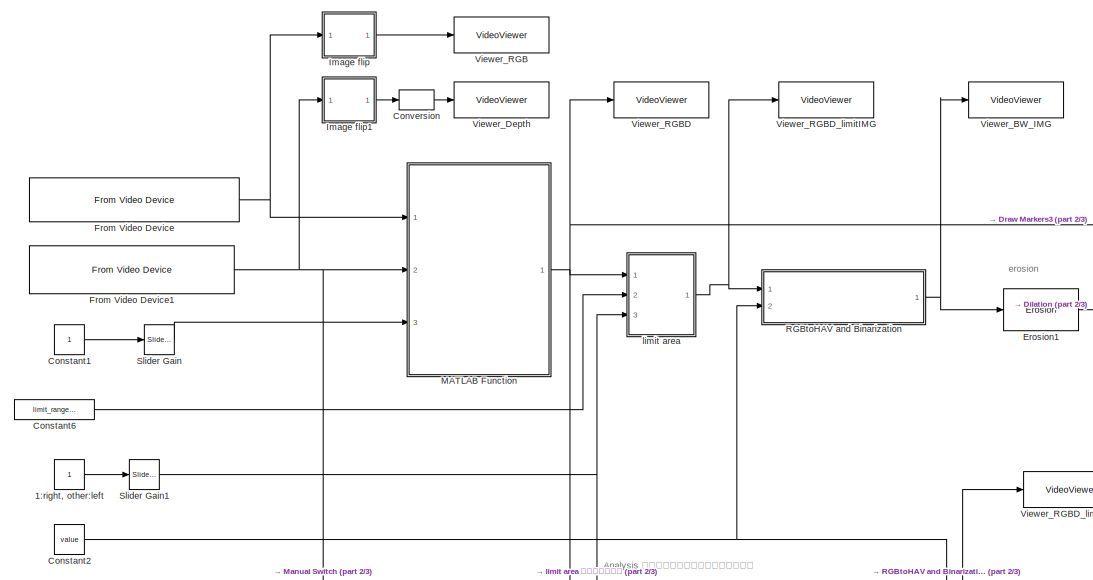
[diagram: root canvas - part 1/3, top center region]
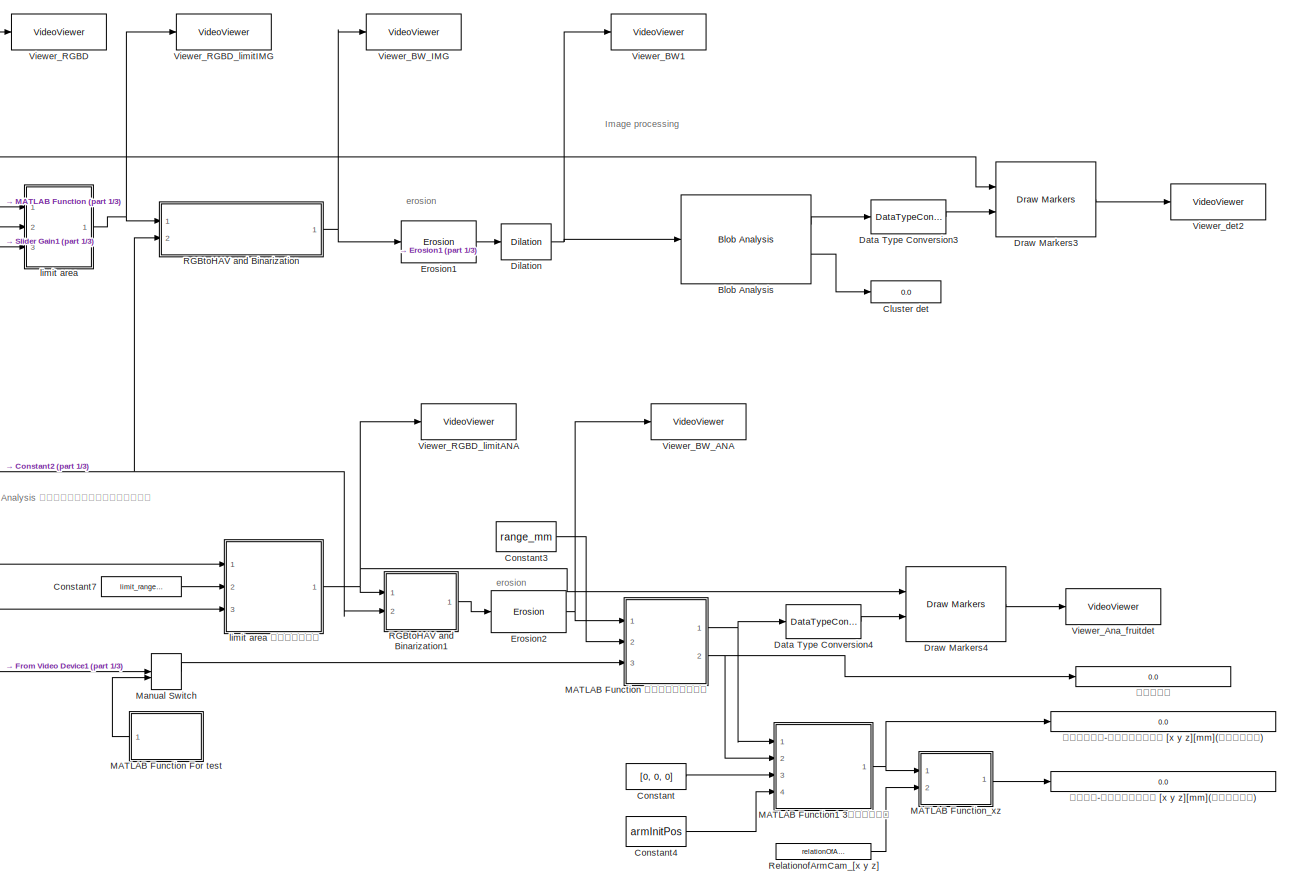
[diagram: root canvas - part 2/3, right side, full height]
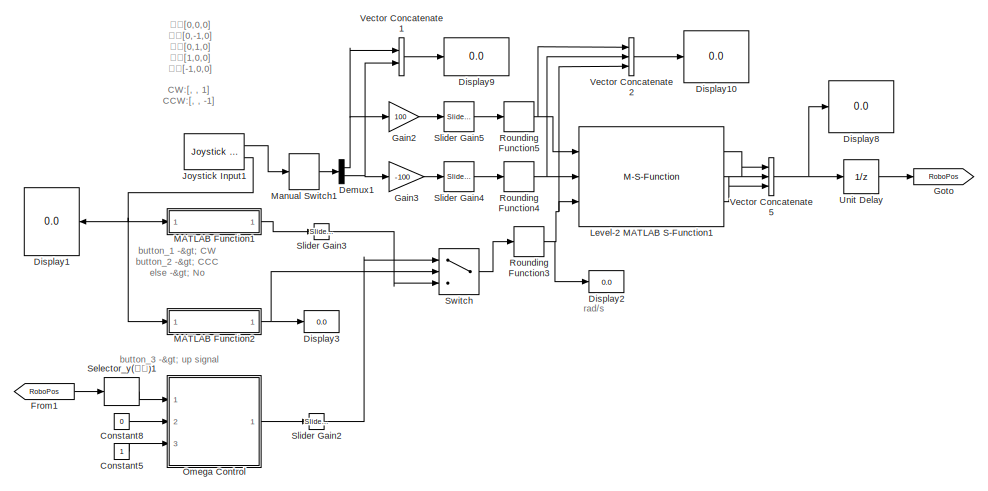
[diagram: root canvas - part 3/3, middle left region]
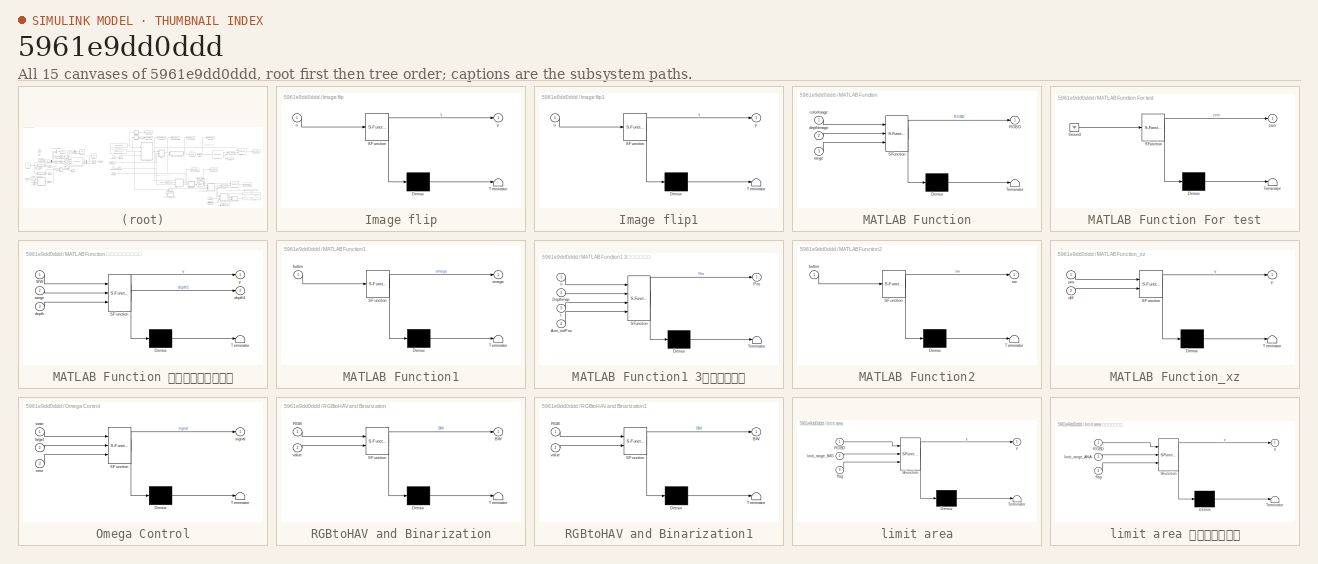
[diagram: thumbnail index - all 15 canvases of the model, root first then tree order]
MODEL slx_5961e9dd0ddd
KIND model
CONFIG AbsTol = auto
CONFIG EnableMultiTasking = off
CONFIG FixedStep = auto
CONFIG MaxStep = auto
CONFIG MinStep = auto
CONFIG RelTol = 1e-3
CONFIG SampleTimeConstraint = Unconstrained
CONFIG Solver = VariableStepAuto
CONFIG SolverName = VariableStepAuto
CONFIG StartTime = 0.0
CONFIG StopTime = inf
BLOCK [Constant] 1:right, other:left
BLOCK [Reference] Blob Analysis  REF=visionstatistics/Blob Analysis
  Ports = [1, 2]
  SourceBlock = visionstatistics/Blob Analysis
  SourceProductBaseCode = VP
  SourceProductName = Computer Vision System Toolbox
  SourceType = Blob Analysis
  Tag = vipblks_row_conv
BLOCK [Display] Cluster det
  Decimation = 1
  Ports = [1]
BLOCK [Constant] Constant
  Value = [0, 0, 0]
BLOCK [Constant] Constant1
BLOCK [Constant] Constant2
  Value = value
BLOCK [Constant] Constant3
  Value = range_mm
BLOCK [Constant] Constant4
  Value = armInitPos
BLOCK [Constant] Constant5
BLOCK [Constant] Constant6
  Value = limit_range_IMG
BLOCK [Constant] Constant7
  Value = limit_range_ANA
BLOCK [Constant] Constant8
  Value = 0
BLOCK [DataTypeConversion] Conversion
  OutDataTypeStr = uint8
  RndMeth = Floor
  SaturateOnIntegerOverflow = off
BLOCK [DataTypeConversion] Data Type Conversion3
  RndMeth = Floor
  SaturateOnIntegerOverflow = off
BLOCK [DataTypeConversion] Data Type Conversion4
  RndMeth = Floor
  SaturateOnIntegerOverflow = off
BLOCK [Demux] Demux1
  DisplayOption = bar
  Outputs = 2
  Ports = [1, 2]
BLOCK [Reference] Dilation  REF=visionmorphops/Dilation
  Commented = through
  Ports = [1, 1]
  SourceBlock = visionmorphops/Dilation
  SourceProductBaseCode = VP
  SourceProductName = Computer Vision System Toolbox
  SourceType = Dilation
BLOCK [Display] Display1
  Decimation = 1
  Ports = [1]
BLOCK [Display] Display10
  Decimation = 1
  Ports = [1]
BLOCK [Display] Display2
  Decimation = 1
  Ports = [1]
BLOCK [Display] Display3
  Decimation = 1
  Ports = [1]
BLOCK [Display] Display8
  Decimation = 1
  Ports = [1]
BLOCK [Display] Display9
  Decimation = 1
  Ports = [1]
BLOCK [Reference] Draw Markers3  REF=visiontextngfix/Draw Markers
  Ports = [2, 1]
  SourceBlock = visiontextngfix/Draw Markers
  SourceProductBaseCode = VP
  SourceProductName = Computer Vision System Toolbox
  SourceType = Draw Markers
BLOCK [Reference] Draw Markers4  REF=visiontextngfix/Draw Markers
  Ports = [2, 1]
  SourceBlock = visiontextngfix/Draw Markers
  SourceProductBaseCode = VP
  SourceProductName = Computer Vision System Toolbox
  SourceType = Draw Markers
BLOCK [Reference] Erosion1  REF=visionmorphops/Erosion
  Ports = [1, 1]
  SourceBlock = visionmorphops/Erosion
  SourceProductBaseCode = VP
  SourceProductName = Computer Vision System Toolbox
  SourceType = Erosion
BLOCK [Reference] Erosion2  REF=visionmorphops/Erosion
  Ports = [1, 1]
  SourceBlock = visionmorphops/Erosion
  SourceProductBaseCode = VP
  SourceProductName = Computer Vision System Toolbox
  SourceType = Erosion
BLOCK [Reference] From Video Device  REF=imaqlib/From Video Device
  Ports = [0, 1]
  SourceBlock = imaqlib/From Video Device
  SourceProductBaseCode = IA
  SourceProductName = Image Acquisition Toolbox
  SourceType = From Video Device
  UserDataPersistent = on
BLOCK [Reference] From Video Device1  REF=imaqlib/From Video Device
  Ports = [0, 1]
  SourceBlock = imaqlib/From Video Device
  SourceProductBaseCode = IA
  SourceProductName = Image Acquisition Toolbox
  SourceType = From Video Device
  UserDataPersistent = on
BLOCK [From] From1
  GotoTag = RoboPos
BLOCK [Gain] Gain2
  Gain = 100
  OutDataTypeStr = Inherit: Inherit via internal rule
  ParamDataTypeStr = Inherit: Inherit via internal rule
  SaturateOnIntegerOverflow = off
BLOCK [Gain] Gain3
  Gain = -100
  OutDataTypeStr = Inherit: Inherit via internal rule
  ParamDataTypeStr = Inherit: Inherit via internal rule
  SaturateOnIntegerOverflow = off
BLOCK [Goto] Goto
  GotoTag = RoboPos
BLOCK [SubSystem] Image flip
  ErrorFcn = Stateflow.Translate.translate
  PermitHierarchicalResolution = ExplicitOnly
  Ports = [1, 1]
  RequestExecContextInheritance = off
  SFBlockType = MATLAB Function
  TreatAsAtomicUnit = on
  Variant = off
BLOCK [Demux] Image flip/ Demux 
  Outputs = 1
  Ports = [1, 1]
BLOCK [S-Function] Image flip/ SFunction 
  EnableBusSupport = on
  FunctionName = sf_sfun
  PortCounts = [1 2]
  Ports = [1, 2]
  SFcnIsStateOwnerBlock = off
  SFunctionDeploymentMode = off
  Tag = Stateflow S-Function test_kinectExia 4
BLOCK [Terminator] Image flip/ Terminator 
BLOCK [Inport] Image flip/u
  IconDisplay = Port number
BLOCK [Outport] Image flip/y
  IconDisplay = Port number
BLOCK [SubSystem] Image flip1
  ErrorFcn = Stateflow.Translate.translate
  PermitHierarchicalResolution = ExplicitOnly
  Ports = [1, 1]
  RequestExecContextInheritance = off
  SFBlockType = MATLAB Function
  TreatAsAtomicUnit = on
  Variant = off
BLOCK [Demux] Image flip1/ Demux 
  Outputs = 1
  Ports = [1, 1]
BLOCK [S-Function] Image flip1/ SFunction 
  EnableBusSupport = on
  FunctionName = sf_sfun
  PortCounts = [1 2]
  Ports = [1, 2]
  SFcnIsStateOwnerBlock = off
  SFunctionDeploymentMode = off
  Tag = Stateflow S-Function test_kinectExia 3
BLOCK [Terminator] Image flip1/ Terminator 
BLOCK [Inport] Image flip1/u
  IconDisplay = Port number
BLOCK [Outport] Image flip1/y
  IconDisplay = Port number
BLOCK [Reference] Joystick Input1  REF=vrlib/Joystick Input
  Ports = [0, 2]
  SourceBlock = vrlib/Joystick Input
  SourceProductBaseCode = VR
  SourceProductName = Simulink 3D Animation
  SourceType = Joystick Input
BLOCK [M-S-Function] Level-2 MATLAB S-Function1
  FunctionName = ExiaSerialPrint2017
  Parameters = 'COM13'
  Ports = [3, 3]
BLOCK [SubSystem] MATLAB Function
  ErrorFcn = Stateflow.Translate.translate
  PermitHierarchicalResolution = ExplicitOnly
  Ports = [3, 1]
  RequestExecContextInheritance = off
  SFBlockType = MATLAB Function
  TreatAsAtomicUnit = on
  Variant = off
BLOCK [SubSystem] MATLAB Function For test
  ErrorFcn = Stateflow.Translate.translate
  PermitHierarchicalResolution = ExplicitOnly
  Ports = [0, 1]
  RequestExecContextInheritance = off
  SFBlockType = MATLAB Function
  TreatAsAtomicUnit = on
  Variant = off
BLOCK [Demux] MATLAB Function For test/ Demux 
  Outputs = 1
  Ports = [1, 1]
BLOCK [Ground] MATLAB Function For test/ Ground 
BLOCK [S-Function] MATLAB Function For test/ SFunction 
  EnableBusSupport = on
  FunctionName = sf_sfun
  PortCounts = [1 2]
  Ports = [1, 2]
  SFcnIsStateOwnerBlock = off
  SFunctionDeploymentMode = off
  Tag = Stateflow S-Function test_kinectExia 1
BLOCK [Terminator] MATLAB Function For test/ Terminator 
BLOCK [Outport] MATLAB Function For test/zero
  IconDisplay = Port number
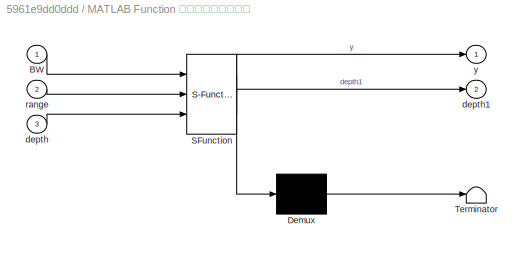
BLOCK [SubSystem] MATLAB Function 収穫対象果実の検出
  ErrorFcn = Stateflow.Translate.translate
  PermitHierarchicalResolution = ExplicitOnly
  Ports = [3, 2]
  RequestExecContextInheritance = off
  SFBlockType = MATLAB Function
  TreatAsAtomicUnit = on
  Variant = off
BLOCK [Demux] MATLAB Function 収穫対象果実の検出/ Demux 
  Outputs = 1
  Ports = [1, 1]
BLOCK [S-Function] MATLAB Function 収穫対象果実の検出/ SFunction 
  EnableBusSupport = on
  FunctionName = sf_sfun
  PortCounts = [3 3]
  Ports = [3, 3]
  SFcnIsStateOwnerBlock = off
  SFunctionDeploymentMode = off
  Tag = Stateflow S-Function test_kinectExia 5
BLOCK [Terminator] MATLAB Function 収穫対象果実の検出/ Terminator 
BLOCK [Inport] MATLAB Function 収穫対象果実の検出/BW
  IconDisplay = Port number
BLOCK [Inport] MATLAB Function 収穫対象果実の検出/depth
  IconDisplay = Port number
  Port = 3
BLOCK [Outport] MATLAB Function 収穫対象果実の検出/depth1
  IconDisplay = Port number
  Port = 2
BLOCK [Inport] MATLAB Function 収穫対象果実の検出/range
  IconDisplay = Port number
  Port = 2
BLOCK [Outport] MATLAB Function 収穫対象果実の検出/y
  IconDisplay = Port number
BLOCK [Demux] MATLAB Function/ Demux 
  Outputs = 1
  Ports = [1, 1]
BLOCK [S-Function] MATLAB Function/ SFunction 
  EnableBusSupport = on
  FunctionName = sf_sfun
  PortCounts = [3 2]
  Ports = [3, 2]
  SFcnIsStateOwnerBlock = off
  SFunctionDeploymentMode = off
  Tag = Stateflow S-Function test_kinectExia 11
BLOCK [Terminator] MATLAB Function/ Terminator 
BLOCK [Outport] MATLAB Function/RGBD
  IconDisplay = Port number
BLOCK [Inport] MATLAB Function/colorImage
  IconDisplay = Port number
BLOCK [Inport] MATLAB Function/depthImage
  IconDisplay = Port number
  Port = 2
BLOCK [Inport] MATLAB Function/range
  IconDisplay = Port number
  Port = 3
BLOCK [SubSystem] MATLAB Function1
  ErrorFcn = Stateflow.Translate.translate
  PermitHierarchicalResolution = ExplicitOnly
  Ports = [1, 1]
  RequestExecContextInheritance = off
  SFBlockType = MATLAB Function
  TreatAsAtomicUnit = on
  Variant = off
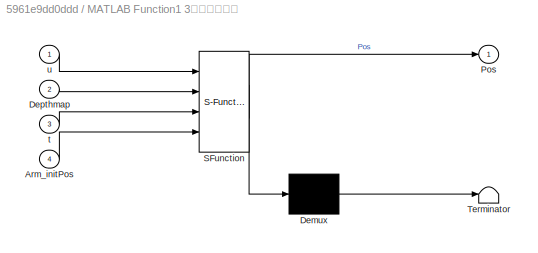
BLOCK [SubSystem] MATLAB Function1 3次元位置検出
  ErrorFcn = Stateflow.Translate.translate
  PermitHierarchicalResolution = ExplicitOnly
  Ports = [4, 1]
  RequestExecContextInheritance = off
  SFBlockType = MATLAB Function
  TreatAsAtomicUnit = on
  Variant = off
BLOCK [Demux] MATLAB Function1 3次元位置検出/ Demux 
  Outputs = 1
  Ports = [1, 1]
BLOCK [S-Function] MATLAB Function1 3次元位置検出/ SFunction 
  EnableBusSupport = on
  FunctionName = sf_sfun
  PortCounts = [4 2]
  Ports = [4, 2]
  SFcnIsStateOwnerBlock = off
  SFunctionDeploymentMode = off
  Tag = Stateflow S-Function test_kinectExia 9
BLOCK [Terminator] MATLAB Function1 3次元位置検出/ Terminator 
BLOCK [Inport] MATLAB Function1 3次元位置検出/Arm_initPos
  IconDisplay = Port number
  Port = 4
BLOCK [Inport] MATLAB Function1 3次元位置検出/Depthmap
  IconDisplay = Port number
  Port = 2
BLOCK [Outport] MATLAB Function1 3次元位置検出/Pos
  IconDisplay = Port number
BLOCK [Inport] MATLAB Function1 3次元位置検出/t
  IconDisplay = Port number
  Port = 3
BLOCK [Inport] MATLAB Function1 3次元位置検出/u
  IconDisplay = Port number
BLOCK [Demux] MATLAB Function1/ Demux 
  Outputs = 1
  Ports = [1, 1]
BLOCK [S-Function] MATLAB Function1/ SFunction 
  EnableBusSupport = on
  FunctionName = sf_sfun
  PortCounts = [1 2]
  Ports = [1, 2]
  SFcnIsStateOwnerBlock = off
  SFunctionDeploymentMode = off
  Tag = Stateflow S-Function test_kinectExia 8
BLOCK [Terminator] MATLAB Function1/ Terminator 
BLOCK [Inport] MATLAB Function1/button
  IconDisplay = Port number
BLOCK [Outport] MATLAB Function1/omega
  IconDisplay = Port number
BLOCK [SubSystem] MATLAB Function2
  ErrorFcn = Stateflow.Translate.translate
  PermitHierarchicalResolution = ExplicitOnly
  Ports = [1, 1]
  RequestExecContextInheritance = off
  SFBlockType = MATLAB Function
  TreatAsAtomicUnit = on
  Variant = off
BLOCK [Demux] MATLAB Function2/ Demux 
  Outputs = 1
  Ports = [1, 1]
BLOCK [S-Function] MATLAB Function2/ SFunction 
  EnableBusSupport = on
  FunctionName = sf_sfun
  PortCounts = [1 2]
  Ports = [1, 2]
  SFcnIsStateOwnerBlock = off
  SFunctionDeploymentMode = off
  Tag = Stateflow S-Function test_kinectExia 10
BLOCK [Terminator] MATLAB Function2/ Terminator 
BLOCK [Inport] MATLAB Function2/button
  IconDisplay = Port number
BLOCK [Outport] MATLAB Function2/sw
  IconDisplay = Port number
BLOCK [SubSystem] MATLAB Function_xz
  ErrorFcn = Stateflow.Translate.translate
  PermitHierarchicalResolution = ExplicitOnly
  Ports = [2, 1]
  RequestExecContextInheritance = off
  SFBlockType = MATLAB Function
  TreatAsAtomicUnit = on
  Variant = off
BLOCK [Demux] MATLAB Function_xz/ Demux 
  Outputs = 1
  Ports = [1, 1]
BLOCK [S-Function] MATLAB Function_xz/ SFunction 
  EnableBusSupport = on
  FunctionName = sf_sfun
  PortCounts = [2 2]
  Ports = [2, 2]
  SFcnIsStateOwnerBlock = off
  SFunctionDeploymentMode = off
  Tag = Stateflow S-Function test_kinectExia 7
BLOCK [Terminator] MATLAB Function_xz/ Terminator 
BLOCK [Inport] MATLAB Function_xz/diff
  IconDisplay = Port number
  Port = 2
BLOCK [Inport] MATLAB Function_xz/pos
  IconDisplay = Port number
BLOCK [Outport] MATLAB Function_xz/y
  IconDisplay = Port number
BLOCK [ManualSwitch] Manual Switch
BLOCK [ManualSwitch] Manual Switch1
BLOCK [SubSystem] Omega Control
  ErrorFcn = Stateflow.Translate.translate
  PermitHierarchicalResolution = ExplicitOnly
  Ports = [3, 1]
  RequestExecContextInheritance = off
  SFBlockType = MATLAB Function
  TreatAsAtomicUnit = on
  Variant = off
BLOCK [Demux] Omega Control/ Demux 
  Outputs = 1
  Ports = [1, 1]
BLOCK [S-Function] Omega Control/ SFunction 
  EnableBusSupport = on
  FunctionName = sf_sfun
  PortCounts = [3 2]
  Ports = [3, 2]
  SFcnIsStateOwnerBlock = off
  SFunctionDeploymentMode = off
  Tag = Stateflow S-Function test_kinectExia 12
BLOCK [Terminator] Omega Control/ Terminator 
BLOCK [Inport] Omega Control/error
  IconDisplay = Port number
  Port = 3
BLOCK [Outport] Omega Control/signal
  IconDisplay = Port number
BLOCK [Inport] Omega Control/state
  IconDisplay = Port number
BLOCK [Inport] Omega Control/target
  IconDisplay = Port number
  Port = 2
BLOCK [SubSystem] RGBtoHAV and Binarization
  ErrorFcn = Stateflow.Translate.translate
  PermitHierarchicalResolution = ExplicitOnly
  Ports = [2, 1]
  RequestExecContextInheritance = off
  SFBlockType = MATLAB Function
  TreatAsAtomicUnit = on
  Variant = off
BLOCK [Demux] RGBtoHAV and Binarization/ Demux 
  Outputs = 1
  Ports = [1, 1]
BLOCK [S-Function] RGBtoHAV and Binarization/ SFunction 
  EnableBusSupport = on
  FunctionName = sf_sfun
  PortCounts = [2 2]
  Ports = [2, 2]
  SFcnIsStateOwnerBlock = off
  SFunctionDeploymentMode = off
  Tag = Stateflow S-Function test_kinectExia 2
BLOCK [Terminator] RGBtoHAV and Binarization/ Terminator 
BLOCK [Outport] RGBtoHAV and Binarization/BW
  IconDisplay = Port number
BLOCK [Inport] RGBtoHAV and Binarization/RGB
  IconDisplay = Port number
BLOCK [Inport] RGBtoHAV and Binarization/value
  IconDisplay = Port number
  Port = 2
BLOCK [SubSystem] RGBtoHAV and Binarization1
  ErrorFcn = Stateflow.Translate.translate
  PermitHierarchicalResolution = ExplicitOnly
  Ports = [2, 1]
  RequestExecContextInheritance = off
  SFBlockType = MATLAB Function
  TreatAsAtomicUnit = on
  Variant = off
BLOCK [Demux] RGBtoHAV and Binarization1/ Demux 
  Outputs = 1
  Ports = [1, 1]
BLOCK [S-Function] RGBtoHAV and Binarization1/ SFunction 
  EnableBusSupport = on
  FunctionName = sf_sfun
  PortCounts = [2 2]
  Ports = [2, 2]
  SFcnIsStateOwnerBlock = off
  SFunctionDeploymentMode = off
  Tag = Stateflow S-Function test_kinectExia 6
BLOCK [Terminator] RGBtoHAV and Binarization1/ Terminator 
BLOCK [Outport] RGBtoHAV and Binarization1/BW
  IconDisplay = Port number
BLOCK [Inport] RGBtoHAV and Binarization1/RGB
  IconDisplay = Port number
BLOCK [Inport] RGBtoHAV and Binarization1/value
  IconDisplay = Port number
  Port = 2
BLOCK [Constant] RelationofArmCam_[x y z]
  Value = relationOfArmCam
BLOCK [Rounding] Rounding Function3
BLOCK [Rounding] Rounding Function4
BLOCK [Rounding] Rounding Function5
BLOCK [Selector] Selector_y(左右)1
  IndexOptions = Index vector (dialog)
  Indices = 3
  InputPortWidth = 3
  OutputSizes = 1
  Ports = [1, 1]
BLOCK [Reference] Slider Gain  REF=simulink/Math
Operations/Slider
Gain
  Ports = [1, 1]
  SourceBlock = simulink/Math\nOperations/Slider\nGain
  SourceProductBaseCode = SL
  SourceProductName = Simulink
  SourceType = Slider Gain
BLOCK [Reference] Slider Gain1  REF=simulink/Math
Operations/Slider
Gain
  Ports = [1, 1]
  SourceBlock = simulink/Math\nOperations/Slider\nGain
  SourceProductBaseCode = SL
  SourceProductName = Simulink
  SourceType = Slider Gain
BLOCK [Reference] Slider Gain2  REF=simulink/Math
Operations/Slider
Gain
  Ports = [1, 1]
  SourceBlock = simulink/Math\nOperations/Slider\nGain
  SourceProductBaseCode = SL
  SourceProductName = Simulink
  SourceType = Slider Gain
BLOCK [Reference] Slider Gain3  REF=simulink/Math
Operations/Slider
Gain
  Ports = [1, 1]
  SourceBlock = simulink/Math\nOperations/Slider\nGain
  SourceProductBaseCode = SL
  SourceProductName = Simulink
  SourceType = Slider Gain
BLOCK [Reference] Slider Gain4  REF=simulink/Math
Operations/Slider
Gain
  Ports = [1, 1]
  SourceBlock = simulink/Math\nOperations/Slider\nGain
  SourceProductBaseCode = SL
  SourceProductName = Simulink
  SourceType = Slider Gain
BLOCK [Reference] Slider Gain5  REF=simulink/Math
Operations/Slider
Gain
  Ports = [1, 1]
  SourceBlock = simulink/Math\nOperations/Slider\nGain
  SourceProductBaseCode = SL
  SourceProductName = Simulink
  SourceType = Slider Gain
BLOCK [Switch] Switch
  Criteria = u2 > Threshold
  InputSameDT = off
  SaturateOnIntegerOverflow = off
BLOCK [UnitDelay] Unit Delay
  InputProcessing = Elements as channels (sample based)
  SampleTime = -1
BLOCK [Concatenate] Vector Concatenate1
  Ports = [2, 1]
BLOCK [Concatenate] Vector Concatenate2
  NumInputs = 3
  Ports = [3, 1]
BLOCK [Concatenate] Vector Concatenate5
  NumInputs = 3
  Ports = [3, 1]
BLOCK [VideoViewer] Viewer_Ana_fruitdet
  FigPos = [1514 544 396 330]
  Ports = [1]
  ScopeSpecificationString = vipscopes.VideoViewerScopeCfg('CurrentConfiguration', extmgr.ConfigurationSet(extmgr.Configuration('Core','General UI',true),extmgr.Configuration('Core','Source UI',true),extmgr.Configuration('Sources','WiredSimulink',true),extmgr.Configuration('Visuals','Video',true),extmgr.Configuration('Tools','Image Navigation Tools',true,'Magnification',0.719339622641509),extmgr.Configuration('Tools','Image T...<+136ch>
  colormapValue = gray(256)
BLOCK [VideoViewer] Viewer_BW1
  Commented = on
  FigPos = [685 929 418 304]
  Ports = [1]
  ScopeSpecificationString = vipscopes.VideoViewerScopeCfg('CurrentConfiguration', extmgr.ConfigurationSet(extmgr.Configuration('Core','General UI',true),extmgr.Configuration('Core','Source UI',true),extmgr.Configuration('Sources','WiredSimulink',true),extmgr.Configuration('Visuals','Video',true),extmgr.Configuration('Tools','Image Navigation Tools',true,'Magnification',0.658018867924528),extmgr.Configuration('Tools','Image T...<+135ch>  <repeated x5 — deduplicated; at blocks: Viewer_BW1, Viewer_BW_IMG, Viewer_RGBD_limitANA, Viewer_RGBD_limitIMG, Viewer_det2>
  colormapValue = gray(256)
BLOCK [VideoViewer] Viewer_BW_ANA
  FigPos = [1379 1090 418 304]
  Ports = [1]
  ScopeSpecificationString = vipscopes.VideoViewerScopeCfg('CurrentConfiguration', extmgr.ConfigurationSet(extmgr.Configuration('Core','General UI',true),extmgr.Configuration('Core','Source UI',true),extmgr.Configuration('Sources','WiredSimulink',true),extmgr.Configuration('Visuals','Video',true),extmgr.Configuration('Tools','Image Navigation Tools',true,'Magnification',0.658018867924528),extmgr.Configuration('Tools','Image T...<+136ch>
  colormapValue = gray(256)
BLOCK [VideoViewer] Viewer_BW_IMG
  FigPos = [650 424 418 304]
  Ports = [1]
  colormapValue = gray(256)
BLOCK [VideoViewer] Viewer_Depth
  Commented = on
  FigPos = [326 827 418 304]
  Ports = [1]
  ScopeSpecificationString = vipscopes.VideoViewerScopeCfg('CurrentConfiguration', extmgr.ConfigurationSet(extmgr.Configuration('Core','General UI',true),extmgr.Configuration('Core','Source UI',true),extmgr.Configuration('Sources','WiredSimulink',true),extmgr.Configuration('Visuals','Video',true),extmgr.Configuration('Tools','Image Navigation Tools',true,'Magnification',0.658018867924528),extmgr.Configuration('Tools','Image T...<+109ch>
  colormapValue = gray(256)
BLOCK [VideoViewer] Viewer_RGB
  Commented = on
  FigPos = [119 580 418 301]
  Ports = [1]
  ScopeSpecificationString = vipscopes.VideoViewerScopeCfg('CurrentConfiguration', extmgr.ConfigurationSet(extmgr.Configuration('Core','General UI',true),extmgr.Configuration('Core','Source UI',true),extmgr.Configuration('Sources','WiredSimulink',true),extmgr.Configuration('Visuals','Video',true),extmgr.Configuration('Tools','Image Navigation Tools',true,'Magnification',0.217708333333333),extmgr.Configuration('Tools','Image T...<+109ch>
  colormapValue = gray(256)
BLOCK [VideoViewer] Viewer_RGBD
  FigPos = [1186 523 418 304]
  Ports = [1]
  ScopeSpecificationString = vipscopes.VideoViewerScopeCfg('CurrentConfiguration', extmgr.ConfigurationSet(extmgr.Configuration('Core','General UI',true),extmgr.Configuration('Core','Source UI',true),extmgr.Configuration('Sources','WiredSimulink',true),extmgr.Configuration('Visuals','Video',true),extmgr.Configuration('Tools','Image Navigation Tools',true,'Magnification',0.658018867924528),extmgr.Configuration('Tools','Image T...<+136ch>
  colormapValue = gray(256)
BLOCK [VideoViewer] Viewer_RGBD_limitANA
  FigPos = [729 882 418 304]
  Ports = [1]
  colormapValue = gray(256)
BLOCK [VideoViewer] Viewer_RGBD_limitIMG
  FigPos = [197 459 418 307]
  Ports = [1]
  colormapValue = gray(256)
BLOCK [VideoViewer] Viewer_det2
  FigPos = [938 457 418 304]
  Ports = [1]
  colormapValue = gray(256)
BLOCK [SubSystem] limit area
  ErrorFcn = Stateflow.Translate.translate
  PermitHierarchicalResolution = ExplicitOnly
  Ports = [3, 1]
  RequestExecContextInheritance = off
  SFBlockType = MATLAB Function
  TreatAsAtomicUnit = on
  Variant = off
BLOCK [SubSystem] limit area 着目領域の限定
  ErrorFcn = Stateflow.Translate.translate
  PermitHierarchicalResolution = ExplicitOnly
  Ports = [3, 1]
  RequestExecContextInheritance = off
  SFBlockType = MATLAB Function
  TreatAsAtomicUnit = on
  Variant = off
BLOCK [Demux] limit area 着目領域の限定/ Demux 
  Outputs = 1
  Ports = [1, 1]
BLOCK [S-Function] limit area 着目領域の限定/ SFunction 
  EnableBusSupport = on
  FunctionName = sf_sfun
  PortCounts = [3 2]
  Ports = [3, 2]
  SFcnIsStateOwnerBlock = off
  SFunctionDeploymentMode = off
  Tag = Stateflow S-Function test_kinectExia 13
BLOCK [Terminator] limit area 着目領域の限定/ Terminator 
BLOCK [Inport] limit area 着目領域の限定/RGBD
  IconDisplay = Port number
BLOCK [Inport] limit area 着目領域の限定/flag
  IconDisplay = Port number
  Port = 3
BLOCK [Inport] limit area 着目領域の限定/limit_range_ANA
  IconDisplay = Port number
  Port = 2
BLOCK [Outport] limit area 着目領域の限定/y
  IconDisplay = Port number
BLOCK [Demux] limit area/ Demux 
  Outputs = 1
  Ports = [1, 1]
BLOCK [S-Function] limit area/ SFunction 
  EnableBusSupport = on
  FunctionName = sf_sfun
  PortCounts = [3 2]
  Ports = [3, 2]
  SFcnIsStateOwnerBlock = off
  SFunctionDeploymentMode = off
  Tag = Stateflow S-Function test_kinectExia 25
BLOCK [Terminator] limit area/ Terminator 
BLOCK [Inport] limit area/RGBD
  IconDisplay = Port number
BLOCK [Inport] limit area/flag
  IconDisplay = Port number
  Port = 3
BLOCK [Inport] limit area/limit_range_IMG
  IconDisplay = Port number
  Port = 2
BLOCK [Outport] limit area/y
  IconDisplay = Port number
BLOCK [Display] カメラレンズ-トマト果実の距離 [x y z][mm](ロボット座標)
  Decimation = 1
  Ports = [1]
BLOCK [Display] 手先位置-トマト果実の距離 [x y z][mm](ロボット座標)
  Decimation = 1
  Ports = [1]
BLOCK [Display] 目標奥行き
  Decimation = 1
  Ports = [1]
ANNOTATION (root): erosion
ANNOTATION (root): button_1 -> CW button_2 -> CCC else -> No
ANNOTATION (root): button_3 -> up signal
ANNOTATION (root): rad/s
ANNOTATION (root): Analysis 検出領域内にトマトがある場合のみ
ANNOTATION (root): CW:[, , 1] CCW:[, , -1]
ANNOTATION (root): Image processing
ANNOTATION (root): 止：[0,0,0] 前：[0,-1,0] 後：[0,1,0] 右：[1,0,0] 左：[-1,0,0]
LINE 1:right, other:left:1 -> Slider Gain1:1
LINE Blob Analysis:1 -> Data Type Conversion3:1
LINE Blob Analysis:2 -> Cluster det:1
LINE Constant1:1 -> Slider Gain:1
NET Constant2:1 -> RGBtoHAV and Binarization1:2, RGBtoHAV and Binarization:2
LINE Constant3:1 -> MATLAB Function 収穫対象果実の検出:2
LINE Constant4:1 -> MATLAB Function1 3次元位置検出:4
LINE Constant5:1 -> Omega Control:3
LINE Constant6:1 -> limit area:2
LINE Constant7:1 -> limit area 着目領域の限定:2
LINE Constant8:1 -> Omega Control:2
LINE Constant:1 -> MATLAB Function1 3次元位置検出:3
LINE Conversion:1 -> Viewer_Depth:1
LINE Data Type Conversion3:1 -> Draw Markers3:2
LINE Data Type Conversion4:1 -> Draw Markers4:2
NET Demux1:1 -> Gain2:1, Vector Concatenate1:1
NET Demux1:2 -> Gain3:1, Vector Concatenate1:2
NET Dilation:1 -> Blob Analysis:1, Viewer_BW1:1
LINE Draw Markers3:1 -> Viewer_det2:1
LINE Draw Markers4:1 -> Viewer_Ana_fruitdet:1
LINE Erosion1:1 -> Dilation:1
NET Erosion2:1 -> MATLAB Function 収穫対象果実の検出:1, Viewer_BW_ANA:1
NET From Video Device1:1 -> Image flip1:1, MATLAB Function:2, Manual Switch:1
NET From Video Device:1 -> Image flip:1, MATLAB Function:1
LINE From1:1 -> Selector_y(左右)1:1
LINE Gain2:1 -> Slider Gain5:1
LINE Gain3:1 -> Slider Gain4:1
LINE Image flip1:1 -> Conversion:1
LINE Image flip:1 -> Viewer_RGB:1
LINE Joystick Input1:1 -> Manual Switch1:1
NET Joystick Input1:2 -> Display1:1, MATLAB Function1:1, MATLAB Function2:1
LINE Level-2 MATLAB S-Function1:1 -> Vector Concatenate5:1
LINE Level-2 MATLAB S-Function1:2 -> Vector Concatenate5:2
LINE Level-2 MATLAB S-Function1:3 -> Vector Concatenate5:3
LINE MATLAB Function For test:1 -> Manual Switch:2
NET MATLAB Function 収穫対象果実の検出:1 -> Data Type Conversion4:1, MATLAB Function1 3次元位置検出:1
NET MATLAB Function 収穫対象果実の検出:2 -> MATLAB Function1 3次元位置検出:2, 目標奥行き:1
NET MATLAB Function1 3次元位置検出:1 -> MATLAB Function_xz:1, カメラレンズ-トマト果実の距離 [x y z][mm](ロボット座標):1
LINE MATLAB Function1:1 -> Slider Gain3:1
NET MATLAB Function2:1 -> Display3:1, Switch:2
NET MATLAB Function:1 -> Draw Markers3:1, Viewer_RGBD:1, limit area 着目領域の限定:1, limit area:1
LINE MATLAB Function_xz:1 -> 手先位置-トマト果実の距離 [x y z][mm](ロボット座標):1
LINE Manual Switch1:1 -> Demux1:1
LINE Manual Switch:1 -> MATLAB Function 収穫対象果実の検出:3
LINE Omega Control:1 -> Slider Gain2:1
LINE RGBtoHAV and Binarization1:1 -> Erosion2:1
NET RGBtoHAV and Binarization:1 -> Erosion1:1, Viewer_BW_IMG:1
LINE RelationofArmCam_[x y z]:1 -> MATLAB Function_xz:2
NET Rounding Function3:1 -> Display2:1, Level-2 MATLAB S-Function1:3, Vector Concatenate2:3
NET Rounding Function4:1 -> Level-2 MATLAB S-Function1:2, Vector Concatenate2:2
NET Rounding Function5:1 -> Level-2 MATLAB S-Function1:1, Vector Concatenate2:1
LINE Selector_y(左右)1:1 -> Omega Control:1
NET Slider Gain1:1 -> limit area 着目領域の限定:3, limit area:3
LINE Slider Gain2:1 -> Switch:1
LINE Slider Gain3:1 -> Switch:3
LINE Slider Gain4:1 -> Rounding Function4:1
LINE Slider Gain5:1 -> Rounding Function5:1
LINE Slider Gain:1 -> MATLAB Function:3
LINE Switch:1 -> Rounding Function3:1
LINE Unit Delay:1 -> Goto:1
LINE Vector Concatenate1:1 -> Display9:1
LINE Vector Concatenate2:1 -> Display10:1
NET Vector Concatenate5:1 -> Display8:1, Unit Delay:1
NET limit area 着目領域の限定:1 -> Draw Markers4:1, RGBtoHAV and Binarization1:1, Viewer_RGBD_limitANA:1
NET limit area:1 -> RGBtoHAV and Binarization:1, Viewer_RGBD_limitIMG:1
note: NET lines group one-source signal fan-out (src -> all destinations, sorted); 1:1 wires keep LINE
CHART MATLAB Function
For test states=1 transitions=1
  STATE_LABEL 'eML_blk_kernel()'
  STATE_LABEL 'SCRIPT:\nfunction zero = fcn()\nzero = zeros(424,512);\n\n'
CHART RGBtoHAV and Binarization states=1 transitions=1
  STATE_LABEL 'eML_blk_kernel()'
  STATE_LABEL 'SCRIPT:\nfunction BW = createMask(RGB, value)\n%createMask  Threshold RGB image using auto-generated code from colorThresholder app.\n%  [BW,MASKEDRGBIMAGE] = createMask(RGB) thresholds image RGB using\n%  auto-generated code from the colorThresholder App. The colorspace and\n%  minimum/maximum values for each channel of the colorspace were set in the\n%  App and result in a binary mask BW and a composi...<+698ch>'
CHART Image flip1 states=1 transitions=1
  STATE_LABEL 'eML_blk_kernel()'
  STATE_LABEL 'SCRIPT:\nfunction y = fcn(u)\n\ny = fliplr(u);\n'
CHART Image flip states=1 transitions=1
  STATE_LABEL 'eML_blk_kernel()'
  STATE_LABEL 'SCRIPT:\nfunction y = fcn(u)\n\ny = fliplr(u);\n'
CHART MATLAB Function
収穫対象果実の検出 states=1 transitions=1
  STATE_LABEL 'eML_blk_kernel()'
  STATE_LABEL 'SCRIPT:\nfunction [y,depth1] = fcn(BW,range, depth)\ny = [0, 0];\ndepth = fliplr(depth);\ndepth1 = 0;\n% %% 非ゼロ検出\n[row,col] = find(BW);\n s=size(row);\n n=s(1);\n if n ~= 0\n    position=zeros(n,3);\n    for i=1:n\n        position(i,1)=col(i);\n        position(i,2)=row(i);\n        position(i,3)=depth(row(i), col(i));\n    end\n%%\n    [row2,col2, v] = find(position(:,3));\n\n    [M, Index]=min(v);\n\n    a=0;b=0;\n...<+565ch>'
CHART RGBtoHAV and Binarization1 states=1 transitions=1
  STATE_LABEL 'eML_blk_kernel()'
  STATE_LABEL 'SCRIPT:\nfunction BW = createMask(RGB, value)\n%createMask  Threshold RGB image using auto-generated code from colorThresholder app.\n%  [BW,MASKEDRGBIMAGE] = createMask(RGB) thresholds image RGB using\n%  auto-generated code from the colorThresholder App. The colorspace and\n%  minimum/maximum values for each channel of the colorspace were set in the\n%  App and result in a binary mask BW and a composi...<+698ch>'
CHART MATLAB Function_xz states=1 transitions=1
  STATE_LABEL 'eML_blk_kernel()'
  STATE_LABEL 'SCRIPT:\nfunction y = fcn(pos,diff)\ny=[0, 0, 0];\n% [x, y, z](Arm座標)\n% x\n\n% 直線距離の算出\npos(1)=pos(1)*cos(asin((pos(2))/pos(1)));\n\n\ny(1) = pos(1) - diff(1); \n% y\ny(2) = diff(2)-pos(2);\n% z\n%y(3) = diff(3)-pos(3);\ny(3) = pos(3) - diff(3);\n\n\n'
CHART MATLAB Function1 states=1 transitions=1
  STATE_LABEL 'eML_blk_kernel()'
  STATE_LABEL 'SCRIPT:\nfunction omega = fcn(button)\n\n% CW\nif button(1) == 1\n    omega = -1;\n% CCW\nelseif button(2) == 1\n    omega = 1;\nelse\n    omega = 0;\nend\n'
CHART MATLAB Function1
3次元位置検出 states=1 transitions=1
  STATE_LABEL 'eML_blk_kernel()'
  STATE_LABEL "SCRIPT:\nfunction Pos = fcn(u, Depthmap, t ,Arm_initPos)\n\nPos = [u(1), u(2), -1];\n%Depthmap=fliplr(Depthmap);\n\ncoder.extrinsic('evalin', 'pointsToWorld')\nParams = evalin('base', 'IRcameraParams');\nR = evalin('base', 'R');\n% t = evalin('base', 't');\n\nif u(2)~=-1 && Depthmap ~= 0\n    %ArmX=double(Depthmap(round(u(2)), round(u(1))));\n    ArmX=double(Depthmap);\n    t(3)=ArmX;\n    imagePoints=[u(1), u(2...<+406ch>"
CHART MATLAB Function2 states=1 transitions=1
  STATE_LABEL 'eML_blk_kernel()'
  STATE_LABEL 'SCRIPT:\nfunction sw = fcn(button)\n\nif button(3) == 1\n    sw = 1;\nelse\n    sw =0;\nend\n    \n'
CHART MATLAB Function states=1 transitions=1
  STATE_LABEL 'eML_blk_kernel()'
  STATE_LABEL "SCRIPT:\nfunction RGBD  = fcn(colorImage, depthImage, range)\n\ncoder.extrinsic('pcfromkinect')\ncoder.extrinsic('evalin')\ncoder.extrinsic('getfield')\n\ndevice = evalin('base', 'depthDevice');\n\npc = pcfromkinect(device,depthImage,colorImage, 'depthCentric');\na = single(zeros(424, 512,3));\nb = uint8(zeros(424, 512,3));\na = getfield(pc, 'Location');\nb = getfield(pc, 'Color');\n\nfor i=1:424\n   for j=1:512\n...<+213ch>"
CHART Omega Control states=1 transitions=1
  STATE_LABEL 'eML_blk_kernel()'
  STATE_LABEL 'SCRIPT:\nfunction signal = fcn(state, target, error)\n\n% CCW補正(左回転)\nif state > target + error\n    signal = -1;\n% CW補正(右回転)\nelseif state < target -1 * error\n    signal = 1;\nelse\n    signal = 0;\nend'
CHART limit area
着目領域の限定 states=1 transitions=1
  STATE_LABEL 'eML_blk_kernel()'
  STATE_LABEL 'SCRIPT:\nfunction y = fcn(RGBD, limit_range_ANA, flag)\n\n% 上側除去\nfor i=1:limit_range_ANA(1)\n    RGBD(i,:,:)=0;\nend\n% 下側除去\nfor i=limit_range_ANA(2):424\n    RGBD(i,:,:)=0;\nend\n\n% 424*512pixel\n% 横半分256の半分128±50pixel\n% 右側着目：flag = 1 : 左側領域除去：i=78:178\n% 左側着目：other    : 右側領域除去：i=334:438\n    \nif flag==1\n    % 左側除去\n    for i=1:limit_range_ANA(3)\n        RGBD(:,i,:)=0;\n    end\n    for i=limit_range_ANA(4):512...<+186ch>'
CHART limit area states=1 transitions=1
  STATE_LABEL 'eML_blk_kernel()'
  STATE_LABEL 'SCRIPT:\nfunction y = fcn(RGBD, limit_range_IMG, flag)\n\n% 上半分除去\nfor i=1:limit_range_IMG(1)\n    RGBD(i,:,:)=0;\nend\n\nfor i=limit_range_IMG(2):424\n    RGBD(i,:,:)=0;\nend\n\n% 424*512pixel\n% 横半分256の半分128±50pixel\n% u(:,i,:)=\n% 左側領域：i=78:178\n% 右側領域：i=334:438\n    \nif flag==1\n    % 左側除去\n    for i=1:limit_range_IMG(3)\n        RGBD(:,i,:)=0;\n    end\n    for i=limit_range_IMG(4):512\n        RGBD(:,i,:)=0;\n    e...<+157ch>'
